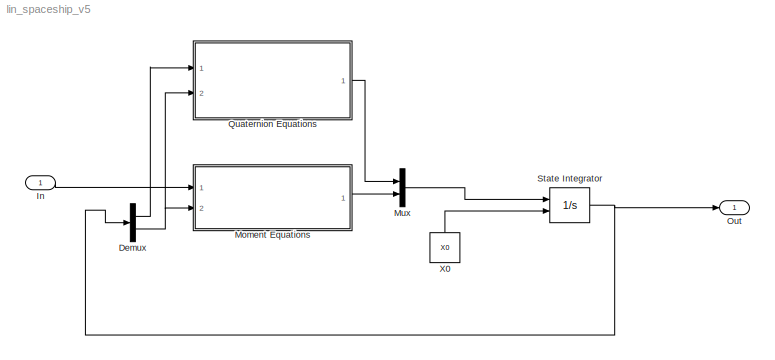
MODEL lin_spaceship_v5
KIND model
BLOCK [Demux] Demux
  DisplayOption = bar
  Outputs = 2
  Ports = [1, 2]
  SID = 3949
BLOCK [Inport] In
  IconDisplay = Port number
  SID = 3633
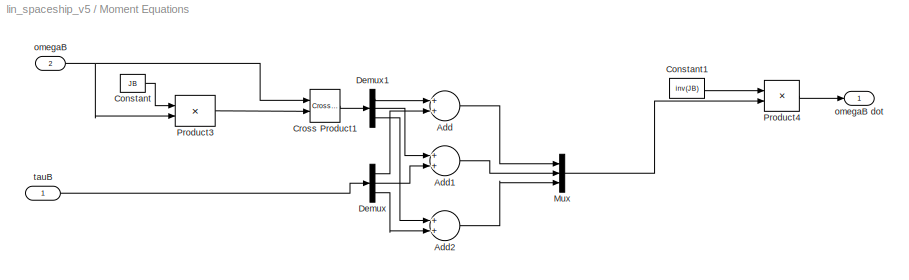
BLOCK [SubSystem] Moment Equations
  FunctionWithSeparateData = off
  MaskHideContents = off
  MinAlgLoopOccurrences = off
  Opaque = off
  Ports = [2, 1]
  PropExecContextOutsideSubsystem = off
  RTWSystemCode = Auto
  RequestExecContextInheritance = off
  SID = 3928
BLOCK [Sum] Moment Equations/Add
  InputSameDT = off
  OutDataTypeStr = Inherit: Inherit via internal rule
  Ports = [2, 1]
  SID = 3948
  SaturateOnIntegerOverflow = off
BLOCK [Sum] Moment Equations/Add1
  InputSameDT = off
  OutDataTypeStr = Inherit: Inherit via internal rule
  Ports = [2, 1]
  SID = 3973
  SaturateOnIntegerOverflow = off
BLOCK [Sum] Moment Equations/Add2
  InputSameDT = off
  OutDataTypeStr = Inherit: Inherit via internal rule
  Ports = [2, 1]
  SID = 3974
  SaturateOnIntegerOverflow = off
BLOCK [Constant] Moment Equations/Constant
  SID = 3939
  Value = JB
BLOCK [Constant] Moment Equations/Constant1
  SID = 3940
  Value = inv(JB)
BLOCK [Reference] Moment Equations/Cross Product1  REF=vrlib/Utilities/Cross Product
  Ports = [2, 1]
  SID = 3933
  SourceBlock = vrlib/Utilities/Cross Product
  SourceType = Cross Product
BLOCK [Demux] Moment Equations/Demux
  DisplayOption = bar
  Outputs = 3
  Ports = [1, 3]
  SID = 3970
BLOCK [Demux] Moment Equations/Demux1
  DisplayOption = bar
  Outputs = 3
  Ports = [1, 3]
  SID = 3971
BLOCK [Mux] Moment Equations/Mux
  DisplayOption = bar
  Inputs = 3
  Ports = [3, 1]
  SID = 3972
BLOCK [Product] Moment Equations/Product3
  InputSameDT = off
  Multiplication = Matrix(*)
  OutDataTypeStr = Inherit: Inherit via internal rule
  Ports = [2, 1]
  SID = 3934
  SaturateOnIntegerOverflow = off
BLOCK [Product] Moment Equations/Product4
  InputSameDT = off
  Multiplication = Matrix(*)
  OutDataTypeStr = Inherit: Inherit via internal rule
  Ports = [2, 1]
  SID = 3935
  SaturateOnIntegerOverflow = off
BLOCK [Inport] Moment Equations/omegaB
  IconDisplay = Port number
  Port = 2
  SID = 3932
BLOCK [Outport] Moment Equations/omegaB dot
  IconDisplay = Port number
  SID = 3937
BLOCK [Inport] Moment Equations/tauB
  IconDisplay = Port number
  OutDataTypeStr = double
  SID = 3943
BLOCK [Mux] Mux
  DisplayOption = bar
  Inputs = 2
  Ports = [2, 1]
  SID = 3950
BLOCK [Outport] Out
  IconDisplay = Port number
  SID = 3634
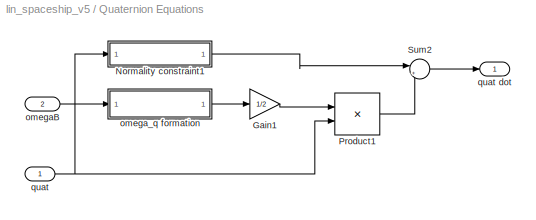
BLOCK [SubSystem] Quaternion Equations
  FunctionWithSeparateData = off
  MaskHideContents = off
  MinAlgLoopOccurrences = off
  Opaque = off
  Ports = [2, 1]
  PropExecContextOutsideSubsystem = off
  RTWSystemCode = Auto
  RequestExecContextInheritance = off
  SID = 3951
BLOCK [Gain] Quaternion Equations/Gain1
  Gain = 1/2
  OutDataTypeStr = Inherit: Inherit via internal rule
  ParamDataTypeStr = Inherit: Inherit via internal rule
  SID = 3954
  SaturateOnIntegerOverflow = off
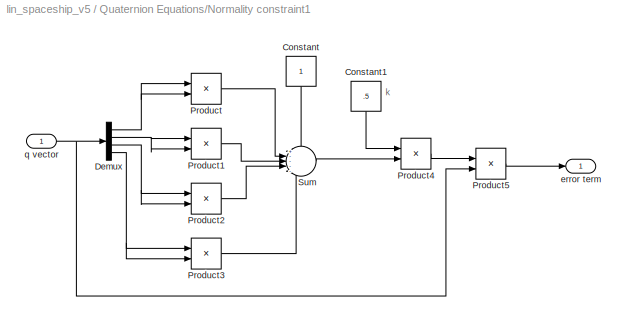
BLOCK [SubSystem] Quaternion Equations/Normality constraint1
  FunctionWithSeparateData = off
  MaskHideContents = off
  MinAlgLoopOccurrences = off
  Opaque = off
  Ports = [1, 1]
  PropExecContextOutsideSubsystem = off
  RTWSystemCode = Auto
  RequestExecContextInheritance = off
  SID = 4014
BLOCK [Constant] Quaternion Equations/Normality constraint1/Constant
  SID = 4016
BLOCK [Constant] Quaternion Equations/Normality constraint1/Constant1
  SID = 4017
  Value = .5
BLOCK [Demux] Quaternion Equations/Normality constraint1/Demux
  DisplayOption = bar
  Ports = [1, 4]
  SID = 4018
BLOCK [Product] Quaternion Equations/Normality constraint1/Product
  InputSameDT = off
  OutDataTypeStr = Inherit: Inherit via internal rule
  Ports = [2, 1]
  SID = 4019
  SaturateOnIntegerOverflow = off
BLOCK [Product] Quaternion Equations/Normality constraint1/Product1
  InputSameDT = off
  OutDataTypeStr = Inherit: Inherit via internal rule
  Ports = [2, 1]
  SID = 4020
  SaturateOnIntegerOverflow = off
BLOCK [Product] Quaternion Equations/Normality constraint1/Product2
  InputSameDT = off
  OutDataTypeStr = Inherit: Inherit via internal rule
  Ports = [2, 1]
  SID = 4021
  SaturateOnIntegerOverflow = off
BLOCK [Product] Quaternion Equations/Normality constraint1/Product3
  InputSameDT = off
  OutDataTypeStr = Inherit: Inherit via internal rule
  Ports = [2, 1]
  SID = 4022
  SaturateOnIntegerOverflow = off
BLOCK [Product] Quaternion Equations/Normality constraint1/Product4
  InputSameDT = off
  OutDataTypeStr = Inherit: Inherit via internal rule
  Ports = [2, 1]
  SID = 4023
  SaturateOnIntegerOverflow = off
BLOCK [Product] Quaternion Equations/Normality constraint1/Product5
  InputSameDT = off
  OutDataTypeStr = Inherit: Inherit via internal rule
  Ports = [2, 1]
  SID = 4024
  SaturateOnIntegerOverflow = off
BLOCK [Sum] Quaternion Equations/Normality constraint1/Sum
  IconShape = round
  InputSameDT = off
  Inputs = +----
  OutDataTypeStr = Inherit: Inherit via internal rule
  Ports = [5, 1]
  SID = 4025
  SaturateOnIntegerOverflow = off
BLOCK [Outport] Quaternion Equations/Normality constraint1/error term
  IconDisplay = Port number
  SID = 4026
BLOCK [Inport] Quaternion Equations/Normality constraint1/q vector
  IconDisplay = Port number
  SID = 4015
BLOCK [Product] Quaternion Equations/Product1
  InputSameDT = off
  Multiplication = Matrix(*)
  OutDataTypeStr = Inherit: Inherit via internal rule
  Ports = [2, 1]
  SID = 3955
  SaturateOnIntegerOverflow = off
BLOCK [Sum] Quaternion Equations/Sum2
  IconShape = round
  InputSameDT = off
  Inputs = |++
  OutDataTypeStr = Inherit: Inherit via internal rule
  Ports = [2, 1]
  SID = 4013
  SaturateOnIntegerOverflow = off
BLOCK [Inport] Quaternion Equations/omegaB
  IconDisplay = Port number
  Port = 2
  SID = 3953
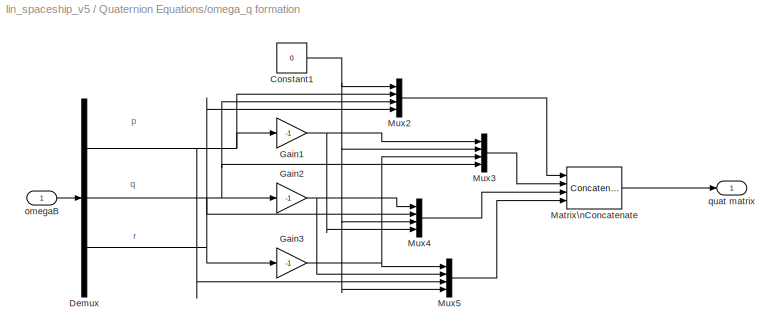
BLOCK [SubSystem] Quaternion Equations/omega_q formation
  FunctionWithSeparateData = off
  MaskHideContents = off
  MinAlgLoopOccurrences = off
  Opaque = off
  Ports = [1, 1]
  PropExecContextOutsideSubsystem = off
  RTWSystemCode = Auto
  RequestExecContextInheritance = off
  SID = 3956
BLOCK [Constant] Quaternion Equations/omega_q formation/Constant1
  SID = 3958
  Value = 0
BLOCK [Demux] Quaternion Equations/omega_q formation/Demux
  DisplayOption = bar
  Outputs = 3
  Ports = [1, 3]
  SID = 3959
BLOCK [Gain] Quaternion Equations/omega_q formation/Gain1
  Gain = -1
  OutDataTypeStr = Inherit: Inherit via internal rule
  ParamDataTypeStr = Inherit: Inherit via internal rule
  SID = 3960
  SaturateOnIntegerOverflow = off
BLOCK [Gain] Quaternion Equations/omega_q formation/Gain2
  Gain = -1
  OutDataTypeStr = Inherit: Inherit via internal rule
  ParamDataTypeStr = Inherit: Inherit via internal rule
  SID = 3961
  SaturateOnIntegerOverflow = off
BLOCK [Gain] Quaternion Equations/omega_q formation/Gain3
  Gain = -1
  OutDataTypeStr = Inherit: Inherit via internal rule
  ParamDataTypeStr = Inherit: Inherit via internal rule
  SID = 3962
  SaturateOnIntegerOverflow = off
BLOCK [Concatenate] Quaternion Equations/omega_q formation/Matrix\nConcatenate
  ConcatenateDimension = 2
  Mode = Multidimensional array
  NumInputs = 4
  Ports = [4, 1]
  SID = 3963
BLOCK [Mux] Quaternion Equations/omega_q formation/Mux2
  DisplayOption = bar
  Ports = [4, 1]
  SID = 3964
BLOCK [Mux] Quaternion Equations/omega_q formation/Mux3
  DisplayOption = bar
  Ports = [4, 1]
  SID = 3965
BLOCK [Mux] Quaternion Equations/omega_q formation/Mux4
  DisplayOption = bar
  Ports = [4, 1]
  SID = 3966
BLOCK [Mux] Quaternion Equations/omega_q formation/Mux5
  DisplayOption = bar
  Ports = [4, 1]
  SID = 3967
BLOCK [Inport] Quaternion Equations/omega_q formation/omegaB
  IconDisplay = Port number
  SID = 3957
BLOCK [Outport] Quaternion Equations/omega_q formation/quat matrix
  IconDisplay = Port number
  SID = 3968
BLOCK [Inport] Quaternion Equations/quat
  IconDisplay = Port number
  SID = 3952
BLOCK [Outport] Quaternion Equations/quat dot
  IconDisplay = Port number
  SID = 3969
BLOCK [Integrator] State Integrator
  InitialConditionSource = external
  Ports = [2, 1]
  SID = 2650
BLOCK [Constant] X0
  SID = 3053
  Value = X0
ANNOTATION Quaternion Equations/Normality constraint1: k
ANNOTATION Quaternion Equations/omega_q formation: p
ANNOTATION Quaternion Equations/omega_q formation: q
ANNOTATION Quaternion Equations/omega_q formation: r
LINE Demux:1 -> Quaternion Equations:1
NET Demux:2 -> Moment Equations:2, Quaternion Equations:2
LINE In:1 -> Moment Equations:1
LINE Moment Equations/Add1:1 -> Moment Equations/Mux:2
LINE Moment Equations/Add2:1 -> Moment Equations/Mux:3
LINE Moment Equations/Add:1 -> Moment Equations/Mux:1
LINE Moment Equations/Constant1:1 -> Moment Equations/Product4:1
LINE Moment Equations/Constant:1 -> Moment Equations/Product3:1
LINE Moment Equations/Cross Product1:1 -> Moment Equations/Demux1:1
LINE Moment Equations/Demux1:1 -> Moment Equations/Add:1
LINE Moment Equations/Demux1:2 -> Moment Equations/Add1:1
LINE Moment Equations/Demux1:3 -> Moment Equations/Add2:1
LINE Moment Equations/Demux:1 -> Moment Equations/Add:2
LINE Moment Equations/Demux:2 -> Moment Equations/Add1:2
LINE Moment Equations/Demux:3 -> Moment Equations/Add2:2
LINE Moment Equations/Mux:1 -> Moment Equations/Product4:2
LINE Moment Equations/Product3:1 -> Moment Equations/Cross Product1:2
LINE Moment Equations/Product4:1 -> Moment Equations/omegaB dot:1
NET Moment Equations/omegaB:1 -> Moment Equations/Cross Product1:1, Moment Equations/Product3:2
LINE Moment Equations/tauB:1 -> Moment Equations/Demux:1
LINE Moment Equations:1 -> Mux:2
LINE Mux:1 -> State Integrator:1
LINE Quaternion Equations/Gain1:1 -> Quaternion Equations/Product1:1
LINE Quaternion Equations/Normality constraint1/Constant1:1 -> Quaternion Equations/Normality constraint1/Product4:1
LINE Quaternion Equations/Normality constraint1/Constant:1 -> Quaternion Equations/Normality constraint1/Sum:1
NET Quaternion Equations/Normality constraint1/Demux:1 -> Quaternion Equations/Normality constraint1/Product:1, Quaternion Equations/Normality constraint1/Product:2
NET Quaternion Equations/Normality constraint1/Demux:2 -> Quaternion Equations/Normality constraint1/Product1:1, Quaternion Equations/Normality constraint1/Product1:2
NET Quaternion Equations/Normality constraint1/Demux:3 -> Quaternion Equations/Normality constraint1/Product2:1, Quaternion Equations/Normality constraint1/Product2:2
NET Quaternion Equations/Normality constraint1/Demux:4 -> Quaternion Equations/Normality constraint1/Product3:1, Quaternion Equations/Normality constraint1/Product3:2
LINE Quaternion Equations/Normality constraint1/Product1:1 -> Quaternion Equations/Normality constraint1/Sum:3
LINE Quaternion Equations/Normality constraint1/Product2:1 -> Quaternion Equations/Normality constraint1/Sum:4
LINE Quaternion Equations/Normality constraint1/Product3:1 -> Quaternion Equations/Normality constraint1/Sum:5
LINE Quaternion Equations/Normality constraint1/Product4:1 -> Quaternion Equations/Normality constraint1/Product5:1
LINE Quaternion Equations/Normality constraint1/Product5:1 -> Quaternion Equations/Normality constraint1/error term:1
LINE Quaternion Equations/Normality constraint1/Product:1 -> Quaternion Equations/Normality constraint1/Sum:2
LINE Quaternion Equations/Normality constraint1/Sum:1 -> Quaternion Equations/Normality constraint1/Product4:2
NET Quaternion Equations/Normality constraint1/q vector:1 -> Quaternion Equations/Normality constraint1/Demux:1, Quaternion Equations/Normality constraint1/Product5:2
LINE Quaternion Equations/Normality constraint1:1 -> Quaternion Equations/Sum2:1
LINE Quaternion Equations/Product1:1 -> Quaternion Equations/Sum2:2
LINE Quaternion Equations/Sum2:1 -> Quaternion Equations/quat dot:1
LINE Quaternion Equations/omegaB:1 -> Quaternion Equations/omega_q formation:1
NET Quaternion Equations/omega_q formation/Constant1:1 -> Quaternion Equations/omega_q formation/Mux2:1, Quaternion Equations/omega_q formation/Mux3:2, Quaternion Equations/omega_q formation/Mux4:3, Quaternion Equations/omega_q formation/Mux5:4
NET Quaternion Equations/omega_q formation/Demux:1 -> Quaternion Equations/omega_q formation/Gain1:1, Quaternion Equations/omega_q formation/Mux2:2, Quaternion Equations/omega_q formation/Mux5:3
NET Quaternion Equations/omega_q formation/Demux:2 -> Quaternion Equations/omega_q formation/Gain2:1, Quaternion Equations/omega_q formation/Mux2:3, Quaternion Equations/omega_q formation/Mux3:4
NET Quaternion Equations/omega_q formation/Demux:3 -> Quaternion Equations/omega_q formation/Gain3:1, Quaternion Equations/omega_q formation/Mux2:4, Quaternion Equations/omega_q formation/Mux4:2
NET Quaternion Equations/omega_q formation/Gain1:1 -> Quaternion Equations/omega_q formation/Mux3:1, Quaternion Equations/omega_q formation/Mux4:4
NET Quaternion Equations/omega_q formation/Gain2:1 -> Quaternion Equations/omega_q formation/Mux4:1, Quaternion Equations/omega_q formation/Mux5:2
NET Quaternion Equations/omega_q formation/Gain3:1 -> Quaternion Equations/omega_q formation/Mux3:3, Quaternion Equations/omega_q formation/Mux5:1
LINE Quaternion Equations/omega_q formation/Matrix\nConcatenate:1 -> Quaternion Equations/omega_q formation/quat matrix:1
LINE Quaternion Equations/omega_q formation/Mux2:1 -> Quaternion Equations/omega_q formation/Matrix\nConcatenate:1
LINE Quaternion Equations/omega_q formation/Mux3:1 -> Quaternion Equations/omega_q formation/Matrix\nConcatenate:2
LINE Quaternion Equations/omega_q formation/Mux4:1 -> Quaternion Equations/omega_q formation/Matrix\nConcatenate:3
LINE Quaternion Equations/omega_q formation/Mux5:1 -> Quaternion Equations/omega_q formation/Matrix\nConcatenate:4
LINE Quaternion Equations/omega_q formation/omegaB:1 -> Quaternion Equations/omega_q formation/Demux:1
LINE Quaternion Equations/omega_q formation:1 -> Quaternion Equations/Gain1:1
NET Quaternion Equations/quat:1 -> Quaternion Equations/Normality constraint1:1, Quaternion Equations/Product1:2
LINE Quaternion Equations:1 -> Mux:1
NET State Integrator:1 -> Demux:1, Out:1
LINE X0:1 -> State Integrator:2
note: NET lines group one-source signal fan-out (src -> all destinations, sorted); 1:1 wires keep LINE
